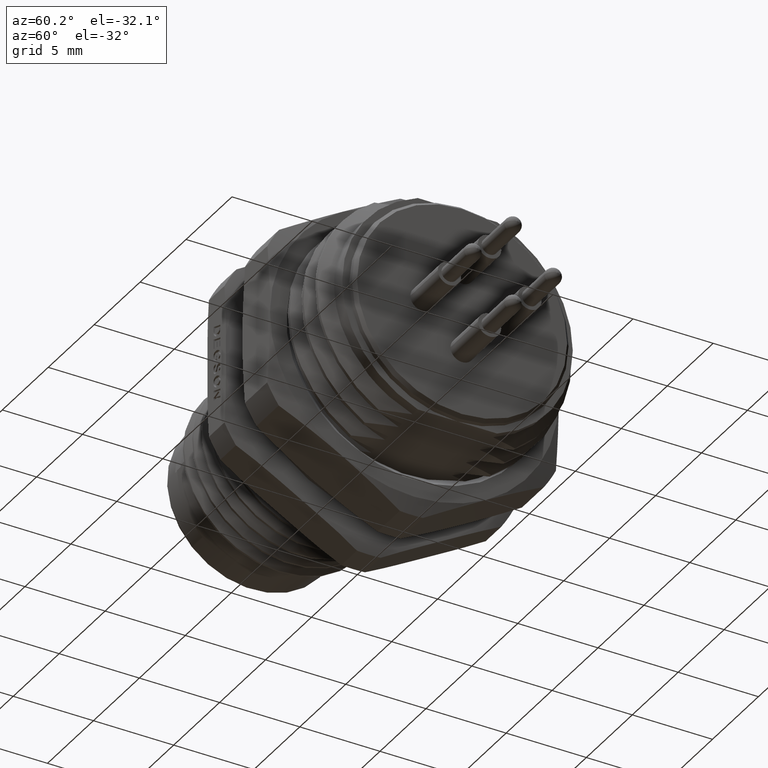
[diagram: clean part render]
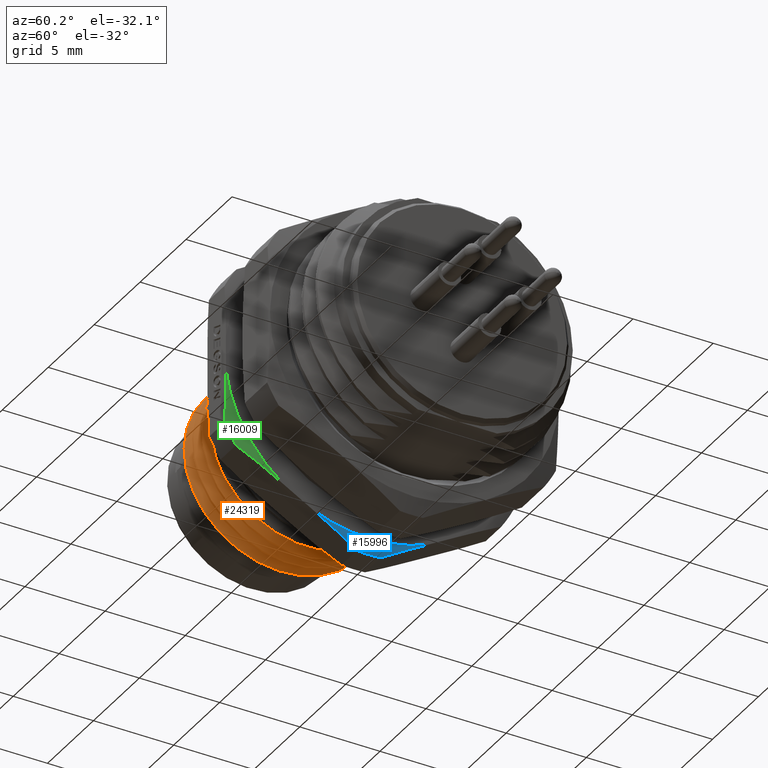
[diagram: same view with three faces highlighted in distinct colors, each labeled with its STEP entity id]
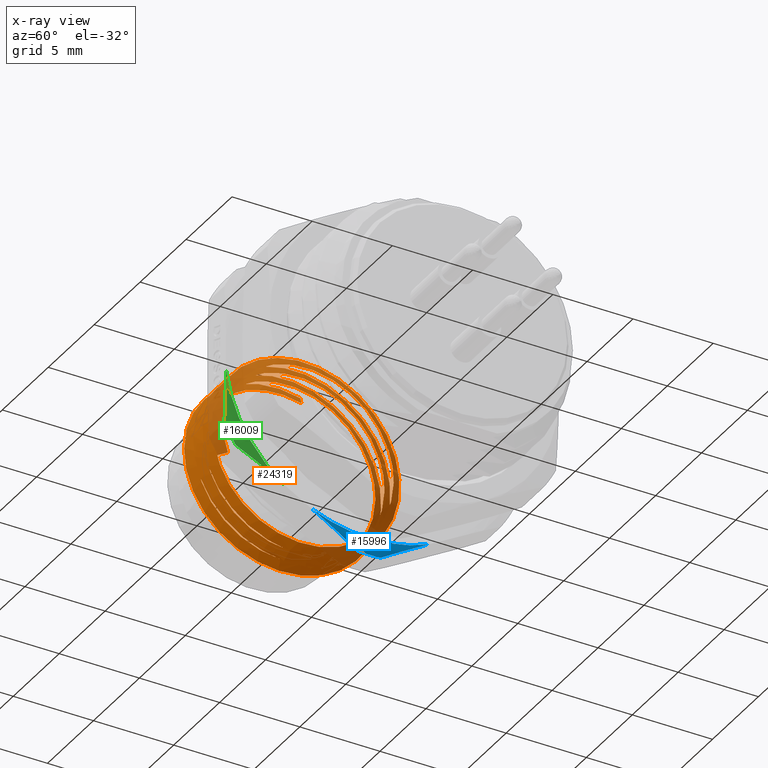
[diagram: x-ray of the same camera — body ghosted, the three highlighted faces saturated]
A machine part, auxiliary view with three faces highlighted in distinct colors.
The next image is the same camera in x-ray (body ghosted, the three faces saturated) — at least one of them is partly hidden behind the body in this view.
Their STEP definitions:

[orange] entity #24319 — the highlighted face is a freeform B-spline surface patch.
#7145=CARTESIAN_POINT('',(3.925110893916E0,-5.458462954374E0,
-1.034022237555E-6));
#7146=CARTESIAN_POINT('',(3.915874759839E0,-5.458462954374E0,
3.176939099980E-1));
#7147=CARTESIAN_POINT('',(3.897338902145E0,-5.402961951286E0,
9.532645131979E-1));
#7148=CARTESIAN_POINT('',(3.869466339573E0,-5.154311855541E0,1.880224829294E0));
#7149=CARTESIAN_POINT('',(3.841696081570E0,-4.748889004004E0,2.745933586248E0));
#7150=CARTESIAN_POINT('',(3.814310058758E0,-4.209028152453E0,3.518989806271E0));
#7151=CARTESIAN_POINT('',(3.786162154714E0,-3.524721522144E0,4.204990101632E0));
#7152=CARTESIAN_POINT('',(3.758393365425E0,-2.740784624661E0,4.752488109097E0));
#7153=CARTESIAN_POINT('',(3.730564741960E0,-1.872431004776E0,5.157030931566E0));
#7154=CARTESIAN_POINT('',(3.702726098155E0,-9.463507257367E-1,
5.404219098629E0));
#7155=CARTESIAN_POINT('',(3.674845465005E0,9.983369484973E-3,5.486436523570E0));
#7156=CARTESIAN_POINT('',(3.647041288167E0,9.633945668887E-1,5.400985244982E0));
#7157=CARTESIAN_POINT('',(3.619297285297E0,1.885592777829E0,5.152066952745E0));
#7158=CARTESIAN_POINT('',(3.591536868240E0,2.750862741965E0,4.746499537824E0));
#7159=CARTESIAN_POINT('',(3.563855074803E0,3.531272674900E0,4.199210870332E0));
#7160=CARTESIAN_POINT('',(3.535801374739E0,4.212429107817E0,3.514751929405E0));
#7161=CARTESIAN_POINT('',(3.508438830380E0,4.751245727893E0,2.741752203590E0));
#7162=CARTESIAN_POINT('',(3.480716342020E0,5.155028668606E0,1.877720006130E0));
#7163=CARTESIAN_POINT('',(3.452983722308E0,5.402777274677E0,9.536361622753E-1));
#7164=CARTESIAN_POINT('',(3.434324337725E0,5.458499072433E0,3.180259185384E-1));
#7165=CARTESIAN_POINT('',(3.425111092593E0,5.458499091056E0,5.327545045412E-7));
#7193=CARTESIAN_POINT('',(4.925119387754E0,-5.458507516866E0,
-3.812726092042E-7));
#7194=CARTESIAN_POINT('',(4.915805579912E0,-5.458507516866E0,
3.175229966495E-1));
#7195=CARTESIAN_POINT('',(4.897391258896E0,-5.402888141827E0,
9.527446022828E-1));
#7196=CARTESIAN_POINT('',(4.869547240258E0,-5.155398178568E0,1.877229255888E0));
#7197=CARTESIAN_POINT('',(4.841737852401E0,-4.749583759298E0,2.744807400910E0));
#7198=CARTESIAN_POINT('',(4.814400921393E0,-4.210946616095E0,3.516474263050E0));
#7199=CARTESIAN_POINT('',(4.786288531264E0,-3.528056709150E0,4.202194201256E0));
#7200=CARTESIAN_POINT('',(4.758500403948E0,-2.744003263366E0,4.750674960975E0));
#7201=CARTESIAN_POINT('',(4.730658026739E0,-1.875464649490E0,5.155974302667E0));
#7202=CARTESIAN_POINT('',(4.702791646844E0,-9.485878346869E-1,
5.403866661463E0));
#7203=CARTESIAN_POINT('',(4.674901398374E0,8.061424321172E-3,5.486465621155E0));
#7204=CARTESIAN_POINT('',(4.647081914870E0,9.620111594402E-1,5.401239012741E0));
#7205=CARTESIAN_POINT('',(4.619337933902E0,1.884294607204E0,5.152582439592E0));
#7206=CARTESIAN_POINT('',(4.591547135281E0,2.750565883193E0,4.746698456299E0));
#7207=CARTESIAN_POINT('',(4.563868712414E0,3.530927062826E0,4.199540097978E0));
#7208=CARTESIAN_POINT('',(4.535796086911E0,4.212542580115E0,3.514553791442E0));
#7209=CARTESIAN_POINT('',(4.508468030227E0,4.750677146523E0,2.742766396033E0));
#7210=CARTESIAN_POINT('',(4.480714170420E0,5.155273770425E0,1.877183435064E0));
#7211=CARTESIAN_POINT('',(4.452939983820E0,5.402713723528E0,9.538117917864E-1));
#7212=CARTESIAN_POINT('',(4.434422015615E0,5.458467445609E0,3.180673808069E-1));
#7213=CARTESIAN_POINT('',(4.425110471044E0,5.458467488005E0,9.540060937383E-7));
#7241=CARTESIAN_POINT('',(2.925110686138E0,-5.458524390436E0,
-7.146764465563E-9));
#7242=CARTESIAN_POINT('',(2.915846653585E0,-5.458524390436E0,
3.172595248717E-1));
#7243=CARTESIAN_POINT('',(2.897389621659E0,-5.403076260597E0,
9.522509598983E-1));
#7244=CARTESIAN_POINT('',(2.869494281783E0,-5.154755604234E0,1.879118864957E0));
#7245=CARTESIAN_POINT('',(2.841703251646E0,-4.749026005614E0,2.745812658372E0));
#7246=CARTESIAN_POINT('',(2.814315233722E0,-4.209084299481E0,3.518765428791E0));
#7247=CARTESIAN_POINT('',(2.786214464833E0,-3.526130835307E0,4.203893595146E0));
#7248=CARTESIAN_POINT('',(2.758346266712E0,-2.739470924363E0,4.753423820190E0));
#7249=CARTESIAN_POINT('',(2.730500734588E0,-1.870349792208E0,5.157801315707E0));
#7250=CARTESIAN_POINT('',(2.702639857336E0,-9.434307582586E-1,
5.404758496119E0));
#7251=CARTESIAN_POINT('',(2.674769234632E0,1.261223468489E-2,5.486373663233E0));
#7252=CARTESIAN_POINT('',(2.646995748819E0,9.649353404795E-1,5.400667810380E0));
#7253=CARTESIAN_POINT('',(2.619268506010E0,1.886498579717E0,5.151668837520E0));
#7254=CARTESIAN_POINT('',(2.591547687967E0,2.750524756814E0,4.746642685812E0));
#7255=CARTESIAN_POINT('',(2.563867386128E0,3.530926619979E0,4.199495423297E0));
#7256=CARTESIAN_POINT('',(2.535828162712E0,4.211863944291E0,3.515395393877E0));
#7257=CARTESIAN_POINT('',(2.508463486476E0,4.750706316845E0,2.742658416701E0));
#7258=CARTESIAN_POINT('',(2.480766919226E0,5.154683952450E0,1.878770579858E0));
#7259=CARTESIAN_POINT('',(2.452924030660E0,5.402823557965E0,9.536670985618E-1));
#7260=CARTESIAN_POINT('',(2.434441446934E0,5.458489733281E0,3.179963780008E-1));
#7261=CARTESIAN_POINT('',(2.425110358849E0,5.458489759418E0,7.477623304995E-7));
#7363=CARTESIAN_POINT('',(1.925110135E0,-5.458460352575E0,-1.094261576913E-6));
#7364=CARTESIAN_POINT('',(1.916355990757E0,-5.458460352575E0,
2.998281776131E-1));
#7365=CARTESIAN_POINT('',(1.898936699739E0,-5.408969111105E0,
8.990763573244E-1));
#7366=CARTESIAN_POINT('',(1.872762104307E0,-5.188953508355E0,1.771806382623E0));
#7367=CARTESIAN_POINT('',(1.846606933989E0,-4.829114643807E0,2.597001041154E0));
#7368=CARTESIAN_POINT('',(1.820439504606E0,-4.338992621246E0,3.352388465929E0));
#7369=CARTESIAN_POINT('',(1.794230030249E0,-3.730736695987E0,4.018384050003E0));
#7370=CARTESIAN_POINT('',(1.768033895795E0,-3.021863588996E0,4.575327907958E0));
#7371=CARTESIAN_POINT('',(1.741838320293E0,-2.231400202431E0,5.008682545730E0));
#7372=CARTESIAN_POINT('',(1.715607936299E0,-1.379330918701E0,5.306902442697E0));
#7373=CARTESIAN_POINT('',(1.689409833807E0,-4.914268204067E-1,
5.461151073764E0));
#7374=CARTESIAN_POINT('',(1.663227755814E0,4.110625478244E-1,5.467809439482E0));
#7375=CARTESIAN_POINT('',(1.645660035872E0,1.004260952015E0,5.373648243291E0));
#7376=CARTESIAN_POINT('',(1.636992851998E0,1.294918229946E0,5.302669388188E0));
#7477=DIRECTION('',(5.000193582571E-1,-2.054454894910E-1,-8.412923345758E-1));
#7478=VECTOR('',#7477,6.252288394915E-1);
#7479=CARTESIAN_POINT('',(1.324366328911E0,1.423368674919E0,5.828669618208E0));
#7480=LINE('',#7479,#7478);
#7515=CARTESIAN_POINT('',(1.324366328911E0,1.423368674919E0,5.828669618208E0));
#7541=CARTESIAN_POINT('',(1.324366328911E0,1.423368674919E0,5.828669618208E0));
#7542=CARTESIAN_POINT('',(1.333367867425E0,1.093684243670E0,5.909064263575E0));
#7543=CARTESIAN_POINT('',(1.351358928719E0,4.191392399015E-1,6.014411866754E0));
#7544=CARTESIAN_POINT('',(1.378600798395E0,-6.106106330622E-1,
5.998443911147E0));
#7545=CARTESIAN_POINT('',(1.405858227662E0,-1.624078418556E0,5.805913137878E0));
#7546=CARTESIAN_POINT('',(1.432811620595E0,-2.579420689694E0,5.449472336250E0));
#7547=CARTESIAN_POINT('',(1.460198831955E0,-3.474670012021E0,4.927505466592E0));
#7548=CARTESIAN_POINT('',(1.487379511591E0,-4.261432187322E0,4.265237613191E0));
#7549=CARTESIAN_POINT('',(1.514674020700E0,-4.926652828682E0,3.475218387258E0));
#7550=CARTESIAN_POINT('',(1.541633469368E0,-5.441590922875E0,2.594854087064E0));
#7551=CARTESIAN_POINT('',(1.568702063689E0,-5.802803005559E0,1.636419016334E0));
#7552=CARTESIAN_POINT('',(1.595967623352E0,-5.997019230619E0,
6.233527453033E-1));
#7553=CARTESIAN_POINT('',(1.623174464229E0,-6.015321490370E0,
-4.060328927039E-1));
#7554=CARTESIAN_POINT('',(1.650253357082E0,-5.859538948293E0,
-1.418509028484E0));
#7555=CARTESIAN_POINT('',(1.677241872116E0,-5.535915409534E0,
-2.387098804854E0));
#7556=CARTESIAN_POINT('',(1.704217713130E0,-5.054037460882E0,
-3.286610665132E0));
#7557=CARTESIAN_POINT('',(1.731208555269E0,-4.426807866350E0,
-4.092653593113E0));
#7558=CARTESIAN_POINT('',(1.758264980590E0,-3.670645595385E0,
-4.782419583009E0));
#7559=CARTESIAN_POINT('',(1.785177296503E0,-2.813307597917E0,
-5.331974520832E0));
#7560=CARTESIAN_POINT('',(1.812302158446E0,-1.868523837541E0,
-5.732364099129E0));
#7561=CARTESIAN_POINT('',(1.839519488507E0,-8.655919878167E-1,
-5.966696266459E0));
#7562=CARTESIAN_POINT('',(1.866742780944E0,1.625656272729E-1,
-6.027102324048E0));
#7563=CARTESIAN_POINT('',(1.893919714333E0,1.184350092248E0,-5.911198345740E0));
#7564=CARTESIAN_POINT('',(1.920858235801E0,2.163217908239E0,-5.627585887385E0));
#7565=CARTESIAN_POINT('',(1.948203218578E0,3.093814796304E0,-5.175208658133E0));
#7566=CARTESIAN_POINT('',(1.975451591856E0,3.930064992058E0,-4.572311453440E0));
#7567=CARTESIAN_POINT('',(2.002649690279E0,4.650262778026E0,-3.837134763648E0));
#7568=CARTESIAN_POINT('',(2.029736316256E0,5.232957008167E0,-2.994199928681E0));
#7569=CARTESIAN_POINT('',(2.056887326826E0,5.665239419698E0,-2.062193494103E0));
#7570=CARTESIAN_POINT('',(2.083910830004E0,5.932142187838E0,-1.075350676657E0));
#7571=CARTESIAN_POINT('',(2.111051857395E0,6.029073953921E0,
-5.289364713209E-2));
#7572=CARTESIAN_POINT('',(2.138402051767E0,5.949452838880E0,9.787395951627E-1));
#7573=CARTESIAN_POINT('',(2.165645238127E0,5.695568061060E0,1.977980077453E0));
#7574=CARTESIAN_POINT('',(2.192833210307E0,5.275984719522E0,2.916979584741E0));
#7575=CARTESIAN_POINT('',(2.219625988217E0,4.712332062136E0,3.759678015084E0));
#7576=CARTESIAN_POINT('',(2.246643739022E0,4.009937929678E0,4.502073747733E0));
#7577=CARTESIAN_POINT('',(2.273724715802E0,3.189488627028E0,5.116094407257E0));
#7578=CARTESIAN_POINT('',(2.300807813621E0,2.277173653200E0,5.582330930419E0));
#7579=CARTESIAN_POINT('',(2.327879742596E0,1.299192418370E0,5.887206058648E0));
#7580=CARTESIAN_POINT('',(2.354974536816E0,2.831393497700E-1,6.022363543713E0));
#7581=CARTESIAN_POINT('',(2.382119305621E0,-7.432730110294E-1,
5.983065337552E0));
#7582=CARTESIAN_POINT('',(2.409323189187E0,-1.750104172162E0,5.769710090915E0));
#7583=CARTESIAN_POINT('',(2.436536521055E0,-2.706218248724E0,5.387357365011E0));
#7584=CARTESIAN_POINT('',(2.463579397235E0,-3.578363346172E0,4.852470362589E0));
#7585=CARTESIAN_POINT('',(2.490923898869E0,-4.355410374763E0,4.169256516758E0));
#7586=CARTESIAN_POINT('',(2.518087571754E0,-5.000198152818E0,3.368958431556E0));
#7587=CARTESIAN_POINT('',(2.545366791677E0,-5.501329394913E0,2.466561020667E0));
#7588=CARTESIAN_POINT('',(2.572322831943E0,-5.838066035998E0,1.503984636137E0));
#7589=CARTESIAN_POINT('',(2.599448673150E0,-6.009144331892E0,
4.919232763638E-1));
#7590=CARTESIAN_POINT('',(2.626742083621E0,-6.005060448891E0,
-5.406466722383E-1));
#7591=CARTESIAN_POINT('',(2.653961974952E0,-5.825125890980E0,
-1.554862869079E0));
#7592=CARTESIAN_POINT('',(2.681069769303E0,-5.477115758254E0,
-2.519471559996E0));
#7593=CARTESIAN_POINT('',(2.708095425084E0,-4.972587776267E0,
-3.409046947106E0));
#7594=CARTESIAN_POINT('',(2.735217250671E0,-4.322350654891E0,
-4.202620798900E0));
#7595=CARTESIAN_POINT('',(2.762099939181E0,-3.554310815838E0,
-4.869687871693E0));
#7596=CARTESIAN_POINT('',(2.789400038023E0,-2.671373568442E0,
-5.405372822940E0));
#7597=CARTESIAN_POINT('',(2.816657180851E0,-1.710861208675E0,
-5.781513094798E0));
#7598=CARTESIAN_POINT('',(2.843976766265E0,-6.983090946150E-1,
-5.988673382942E0));
#7599=CARTESIAN_POINT('',(2.871064117688E0,3.262124257244E-1,
-6.019829519281E0));
#7600=CARTESIAN_POINT('',(2.898061130916E0,1.337706039E0,-5.878716167544E0));
#7601=CARTESIAN_POINT('',(2.925300577482E0,2.319623229099E0,-5.565201828754E0));
#7602=CARTESIAN_POINT('',(2.952516320648E0,3.232678361842E0,-5.089296800652E0));
#7603=CARTESIAN_POINT('',(2.979745146245E0,4.052038509017E0,-4.464560136202E0));
#7604=CARTESIAN_POINT('',(3.006951648463E0,4.752334813965E0,-3.710249430264E0));
#7605=CARTESIAN_POINT('',(3.034126788999E0,5.313608101943E0,-2.848619852006E0));
#7606=CARTESIAN_POINT('',(3.061255038689E0,5.719843957881E0,-1.906143249420E0));
#7607=CARTESIAN_POINT('',(3.088450150238E0,5.960627724924E0,
-9.056398208863E-1));
#7608=CARTESIAN_POINT('',(3.115529334879E0,6.027767823005E0,1.165731648748E-1));
#7609=CARTESIAN_POINT('',(3.142700106701E0,5.920759847321E0,1.139169418999E0));
#7610=CARTESIAN_POINT('',(3.170034166848E0,5.638987560279E0,2.134117028533E0));
#7611=CARTESIAN_POINT('',(3.197259533162E0,5.193321048386E0,3.063070314084E0));
#7612=CARTESIAN_POINT('',(3.224491779857E0,4.595529420079E0,3.902014009669E0));
#7613=CARTESIAN_POINT('',(3.251296961574E0,3.876274872272E0,4.617245694420E0));
#7614=CARTESIAN_POINT('',(3.278502154669E0,3.034850569142E0,5.209768366944E0));
#7615=CARTESIAN_POINT('',(3.305674561991E0,2.105341019466E0,5.649539086693E0));
#7616=CARTESIAN_POINT('',(3.332839106100E0,1.115307131872E0,5.924940540709E0));
#7617=CARTESIAN_POINT('',(3.359945289460E0,9.480346538817E-2,6.028253396721E0));
#7618=CARTESIAN_POINT('',(3.387097960354E0,-9.299279117774E-1,
5.956917421053E0));
#7619=CARTESIAN_POINT('',(3.414216374440E0,-1.926576750474E0,5.712689256592E0));
#7620=CARTESIAN_POINT('',(3.441262597535E0,-2.865034107223E0,5.304938908752E0));
#7621=CARTESIAN_POINT('',(3.468594662073E0,-3.729607445692E0,4.737365222773E0));
#7622=CARTESIAN_POINT('',(3.495771410501E0,-4.480308615031E0,4.034726064956E0));
#7623=CARTESIAN_POINT('',(3.523076295824E0,-5.103155242897E0,3.210401570990E0));
#7624=CARTESIAN_POINT('',(3.550012170919E0,-5.570656996700E0,2.304938749563E0));
#7625=CARTESIAN_POINT('',(3.577191358E0,-5.882007793592E0,1.324772991972E0));
#7626=CARTESIAN_POINT('',(3.604466987019E0,-6.021679307267E0,
3.023454337665E-1));
#7627=CARTESIAN_POINT('',(3.631693071393E0,-5.985111451234E0,
-7.272711474024E-1));
#7628=CARTESIAN_POINT('',(3.658816586211E0,-5.774844880389E0,
-1.731596122569E0));
#7629=CARTESIAN_POINT('',(3.685868613548E0,-5.398608074574E0,
-2.683585378316E0));
#7630=CARTESIAN_POINT('',(3.712876557985E0,-4.867828898813E0,
-3.556573300442E0));
#7631=CARTESIAN_POINT('',(3.739878389080E0,-4.197433025881E0,
-4.327643076422E0));
#7632=CARTESIAN_POINT('',(3.766905331367E0,-3.405649229508E0,
-4.974413602867E0));
#7633=CARTESIAN_POINT('',(3.793803524103E0,-2.520404596094E0,
-5.476747536752E0));
#7634=CARTESIAN_POINT('',(3.821045922002E0,-1.550974502112E0,
-5.826402159215E0));
#7635=CARTESIAN_POINT('',(3.848286209763E0,-5.357764565866E-1,
-6.005516942062E0));
#7636=CARTESIAN_POINT('',(3.875593082563E0,4.972670131696E-1,
-6.008617020244E0));
#7637=CARTESIAN_POINT('',(3.902649427029E0,1.506649190918E0,-5.837342005241E0));
#7638=CARTESIAN_POINT('',(3.929647360229E0,2.470521320295E0,-5.499608841125E0));
#7639=CARTESIAN_POINT('',(3.956930336478E0,3.372758169621E0,-4.997783109951E0));
#7640=CARTESIAN_POINT('',(3.984147356731E0,4.173821758587E0,-4.350800953150E0));
#7641=CARTESIAN_POINT('',(4.011324473849E0,4.852416414231E0,-3.578118644501E0));
#7642=CARTESIAN_POINT('',(4.038432086074E0,5.388762431310E0,-2.704001420572E0));
#7643=CARTESIAN_POINT('',(4.065665234607E0,5.770377738342E0,-1.746797354047E0));
#7644=CARTESIAN_POINT('',(4.092663710139E0,5.982347572495E0,
-7.476337026938E-1));
#7645=CARTESIAN_POINT('',(4.119916252559E0,6.022775375099E0,2.828020450860E-1));
#7646=CARTESIAN_POINT('',(4.147175163851E0,5.886265412675E0,1.305013580343E0));
#7647=CARTESIAN_POINT('',(4.174384685965E0,5.578311221093E0,2.287529869610E0));
#7648=CARTESIAN_POINT('',(4.201437646932E0,5.110452274014E0,3.197699260201E0));
#7649=CARTESIAN_POINT('',(4.228251149106E0,4.501923962176E0,4.009541903877E0));
#7650=CARTESIAN_POINT('',(4.255324178512E0,3.758546208448E0,4.713978781726E0));
#7651=CARTESIAN_POINT('',(4.282399167445E0,2.906042804905E0,5.282249093538E0));
#7652=CARTESIAN_POINT('',(4.309439956794E0,1.971140525369E0,5.697390301848E0));
#7653=CARTESIAN_POINT('',(4.336438166958E0,9.808695851236E-1,5.948427934754E0));
#7654=CARTESIAN_POINT('',(4.363475991350E0,-3.879655424918E-2,
6.028742670046E0));
#7655=CARTESIAN_POINT('',(4.390596865643E0,-1.060780682188E0,5.935072353216E0));
#7656=CARTESIAN_POINT('',(4.417804011252E0,-2.054863779445E0,5.668163046601E0));
#7657=CARTESIAN_POINT('',(4.444938137231E0,-2.986697030542E0,5.237027451781E0));
#7658=CARTESIAN_POINT('',(4.471994876220E0,-3.829800525051E0,4.656547140276E0));
#7659=CARTESIAN_POINT('',(4.499311028312E0,-4.568937462997E0,3.934027695736E0));
#7660=CARTESIAN_POINT('',(4.526465406024E0,-5.170591139165E0,3.101229277948E0));
#7661=CARTESIAN_POINT('',(4.553802105572E0,-5.624262737022E0,2.171678584441E0));
#7662=CARTESIAN_POINT('',(4.580693752336E0,-5.909075473452E0,1.194948841484E0));
#7663=CARTESIAN_POINT('',(4.607934103320E0,-6.027008329475E0,
1.711146818126E-1));
#7664=CARTESIAN_POINT('',(4.635194468921E0,-5.967759324039E0,
-8.590110915925E-1));
#7665=CARTESIAN_POINT('',(4.653387957197E0,-5.811935390673E0,
-1.528452889199E0));
#7666=CARTESIAN_POINT('',(4.662469055234E0,-5.706252821370E0,
-1.854074129763E0));
#8057=DIRECTION('',(5.000411336702E-1,8.236164563603E-1,2.676094121109E-1));
#8058=VECTOR('',#8057,6.252012864018E-1);
#8059=CARTESIAN_POINT('',(4.662469055234E0,-5.706252821370E0,
-1.854074129763E0));
#8060=LINE('',#8059,#8058);
#8153=CARTESIAN_POINT('',(4.975095415259E0,-5.191326753352E0,
-1.686764381058E0));
#8154=CARTESIAN_POINT('',(4.969503735029E0,-5.250205374399E0,
-1.505554589881E0));
#8155=CARTESIAN_POINT('',(4.958595363892E0,-5.348994569756E0,
-1.136962790571E0));
#8156=CARTESIAN_POINT('',(4.941747891570E0,-5.438522682733E0,
-5.716157015273E-1));
#8157=CARTESIAN_POINT('',(4.930708368281E0,-5.458507510130E0,
-1.905379971867E-1));
#8158=CARTESIAN_POINT('',(4.925119387754E0,-5.458507516866E0,
-3.812726092042E-7));
#8207=CARTESIAN_POINT('',(2.425110358849E0,5.458489759418E0,7.477623304995E-7));
#8208=CARTESIAN_POINT('',(2.415801805489E0,5.458489785493E0,
-3.172269179894E-1));
#8209=CARTESIAN_POINT('',(2.397418894977E0,5.403086351318E0,
-9.520487136942E-1));
#8210=CARTESIAN_POINT('',(2.369522164440E0,5.155109897920E0,-1.877960346309E0));
#8211=CARTESIAN_POINT('',(2.341753956182E0,4.749883048923E0,-2.744379170493E0));
#8212=CARTESIAN_POINT('',(2.314334615984E0,4.209570672577E0,-3.518265218205E0));
#8213=CARTESIAN_POINT('',(2.286220251208E0,3.526289833449E0,-4.203790232005E0));
#8214=CARTESIAN_POINT('',(2.258342701515E0,2.739367168448E0,-4.753482654046E0));
#8215=CARTESIAN_POINT('',(2.230505262942E0,1.870490681814E0,-5.157735702538E0));
#8216=CARTESIAN_POINT('',(2.202644572505E0,9.435920598306E-1,
-5.404736894118E0));
#8217=CARTESIAN_POINT('',(2.174772479509E0,-1.249981354460E-2,
-5.486368837662E0));
#8218=CARTESIAN_POINT('',(2.147003313321E0,-9.646787029804E-1,
-5.400710609332E0));
#8219=CARTESIAN_POINT('',(2.119276366287E0,-1.886241213433E0,
-5.151751850560E0));
#8220=CARTESIAN_POINT('',(2.091565145441E0,-2.749993997027E0,
-4.746933070150E0));
#8221=CARTESIAN_POINT('',(2.063886758111E0,-3.530423860152E0,
-4.199921248128E0));
#8222=CARTESIAN_POINT('',(2.035846577457E0,-4.211436272209E0,
-3.515899993250E0));
#8223=CARTESIAN_POINT('',(2.008488364278E0,-4.750315504302E0,
-2.743329566615E0));
#8224=CARTESIAN_POINT('',(1.980777813804E0,-5.154488782996E0,
-1.879370518758E0));
#8225=CARTESIAN_POINT('',(1.952950211956E0,-5.402846803083E0,
-9.537473123403E-1));
#8226=CARTESIAN_POINT('',(1.934394974114E0,-5.458460304762E0,
-3.180057098011E-1));
#8227=CARTESIAN_POINT('',(1.925110135E0,-5.458460352575E0,-1.094261576913E-6));
#8255=CARTESIAN_POINT('',(4.425110471044E0,5.458467488005E0,9.540060937383E-7));
#8256=CARTESIAN_POINT('',(4.415810418561E0,5.458467485193E0,
-3.176738133325E-1));
#8257=CARTESIAN_POINT('',(4.397373925173E0,5.402963884436E0,
-9.532176430129E-1));
#8258=CARTESIAN_POINT('',(4.369459376296E0,5.154352647127E0,-1.880111092619E0));
#8259=CARTESIAN_POINT('',(4.341701422876E0,4.748927546850E0,-2.745876934912E0));
#8260=CARTESIAN_POINT('',(4.314310560173E0,4.209057367995E0,-3.518942088996E0));
#8261=CARTESIAN_POINT('',(4.286169215887E0,3.524897444194E0,-4.204841954097E0));
#8262=CARTESIAN_POINT('',(4.258395205764E0,2.740848455779E0,-4.752460030240E0));
#8263=CARTESIAN_POINT('',(4.230565098114E0,1.872442379472E0,-5.157036158758E0));
#8264=CARTESIAN_POINT('',(4.202719689014E0,9.461372476583E-1,
-5.404264080958E0));
#8265=CARTESIAN_POINT('',(4.174837511490E0,-1.026050047384E-2,
-5.486447368534E0));
#8266=CARTESIAN_POINT('',(4.147025359782E0,-9.639331828280E-1,-5.400893593E0));
#8267=CARTESIAN_POINT('',(4.119282178493E0,-1.886088446525E0,
-5.151900617882E0));
#8268=CARTESIAN_POINT('',(4.091509079156E0,-2.751696449124E0,
-4.746028390019E0));
#8269=CARTESIAN_POINT('',(4.063830398352E0,-3.531921134128E0,
-4.198665947619E0));
#8270=CARTESIAN_POINT('',(4.035771845009E0,-4.213092762621E0,
-3.513959127777E0));
#8271=CARTESIAN_POINT('',(4.008411980561E0,-4.751679793345E0,
-2.740995004381E0));
#8272=CARTESIAN_POINT('',(3.980697626180E0,-5.155280212363E0,
-1.876942284167E0));
#8273=CARTESIAN_POINT('',(3.952965031068E0,-5.402774691149E0,
-9.535554341330E-1));
#8274=CARTESIAN_POINT('',(3.934356521075E0,-5.458462909191E0,
-3.180216138669E-1));
#8275=CARTESIAN_POINT('',(3.925110893916E0,-5.458462954374E0,
-1.034022237555E-6));
#8309=CARTESIAN_POINT('',(3.425111092593E0,5.458499091056E0,5.327545045412E-7));
#8310=CARTESIAN_POINT('',(3.415907032677E0,5.458499109662E0,
-3.177077952072E-1));
#8311=CARTESIAN_POINT('',(3.397321188949E0,5.402940824644E0,
-9.532907365379E-1));
#8312=CARTESIAN_POINT('',(3.369471009046E0,5.154308352777E0,-1.880243722144E0));
#8313=CARTESIAN_POINT('',(3.341694820731E0,4.748892357995E0,-2.745918952229E0));
#8314=CARTESIAN_POINT('',(3.314311430956E0,4.209051154146E0,-3.518972473661E0));
#8315=CARTESIAN_POINT('',(3.286158460368E0,3.524630674353E0,-4.205068676825E0));
#8316=CARTESIAN_POINT('',(3.258393173546E0,2.740772119734E0,-4.752487172661E0));
#8317=CARTESIAN_POINT('',(3.230566927860E0,1.872501504237E0,-5.156996678719E0));
#8318=CARTESIAN_POINT('',(3.202732964148E0,9.465808048431E-1,
-5.404175665321E0));
#8319=CARTESIAN_POINT('',(3.174852777028E0,-9.728491987565E-3,
-5.486426400080E0));
#8320=CARTESIAN_POINT('',(3.147056512707E0,-9.628801457117E-1,
-5.401072193618E0));
#8321=CARTESIAN_POINT('',(3.119311848110E0,-1.885113115770E0,
-5.152227038813E0));
#8322=CARTESIAN_POINT('',(3.091564825814E0,-2.750027410420E0,
-4.746968285188E0));
#8323=CARTESIAN_POINT('',(3.063880236523E0,-3.530598662848E0,
-4.199779991264E0));
#8324=CARTESIAN_POINT('',(3.035831810177E0,-4.211781207554E0,
-3.515523300015E0));
#8325=CARTESIAN_POINT('',(3.008462331585E0,-4.750778457020E0,
-2.742564214726E0));
#8326=CARTESIAN_POINT('',(2.980751715398E0,-5.154775004743E0,
-1.878504817828E0));
#8327=CARTESIAN_POINT('',(2.952949759204E0,-5.402777738919E0,
-9.537523911320E-1));
#8328=CARTESIAN_POINT('',(2.934397507598E0,-5.458524390436E0,
-3.180399766407E-1));
#8329=CARTESIAN_POINT('',(2.925110686138E0,-5.458524390436E0,
-7.146764465563E-9));
#13570=VERTEX_POINT('',#7363);
#13571=VERTEX_POINT('',#7376);
#13573=VERTEX_POINT('',#7515);
#13574=VERTEX_POINT('',#7666);
#13575=VERTEX_POINT('',#8207);
#13577=VERTEX_POINT('',#7241);
#13579=VERTEX_POINT('',#8309);
#13581=VERTEX_POINT('',#7145);
#13583=VERTEX_POINT('',#8255);
#13585=VERTEX_POINT('',#7193);
#13587=VERTEX_POINT('',#8153);
#24030=CARTESIAN_POINT('',(1.642775549621E0,1.975474396615E0,5.037958113635E0));
#24031=CARTESIAN_POINT('',(1.520455504688E0,2.052815314917E0,5.235196968031E0));
#24032=CARTESIAN_POINT('',(1.398135459756E0,2.130156233219E0,5.432435822426E0));
#24033=CARTESIAN_POINT('',(1.275815414823E0,2.207497151521E0,5.629674676821E0));
#24034=CARTESIAN_POINT('',(1.649894480341E0,1.750207967640E0,5.126504418101E0));
#24035=CARTESIAN_POINT('',(1.527574435409E0,1.818729580307E0,5.327209909428E0));
#24036=CARTESIAN_POINT('',(1.405254390476E0,1.887251192973E0,5.527915400754E0));
#24037=CARTESIAN_POINT('',(1.282934345544E0,1.955772805639E0,5.728620892081E0));
#24038=CARTESIAN_POINT('',(1.670921982476E0,1.067019258376E0,5.342443371659E0));
#24039=CARTESIAN_POINT('',(1.548601937544E0,1.108793654152E0,5.551602992786E0));
#24040=CARTESIAN_POINT('',(1.426281892611E0,1.150568049928E0,5.760762613912E0));
#24041=CARTESIAN_POINT('',(1.303961847679E0,1.192342445704E0,5.969922235039E0));
#24042=CARTESIAN_POINT('',(1.710030966779E0,-2.663105617490E-1,
5.488285717932E0));
#24043=CARTESIAN_POINT('',(1.587710921846E0,-2.767367679476E-1,
5.703155147805E0));
#24044=CARTESIAN_POINT('',(1.465390876913E0,-2.871629741462E-1,
5.918024577677E0));
#24045=CARTESIAN_POINT('',(1.343070831981E0,-2.975891803449E-1,
6.132894007550E0));
#24046=CARTESIAN_POINT('',(1.760102501302E0,-1.961616102942E0,
5.156829466277E0));
#24047=CARTESIAN_POINT('',(1.637782456369E0,-2.038414461360E0,
5.358722200059E0));
#24048=CARTESIAN_POINT('',(1.515462411437E0,-2.115212819779E0,
5.560614933841E0));
#24049=CARTESIAN_POINT('',(1.393142366505E0,-2.192011178198E0,
5.762507667623E0));
#24050=CARTESIAN_POINT('',(1.814346947803E0,-3.572542769587E0,
4.204495832779E0));
#24051=CARTESIAN_POINT('',(1.692026902870E0,-3.712409800487E0,
4.369104176608E0));
#24052=CARTESIAN_POINT('',(1.569706857938E0,-3.852276831387E0,
4.533712520437E0));
#24053=CARTESIAN_POINT('',(1.447386813006E0,-3.992143862287E0,
4.698320864266E0));
#24054=CARTESIAN_POINT('',(1.868591394303E0,-4.772469638099E0,
2.768460740891E0));
#24055=CARTESIAN_POINT('',(1.746271349370E0,-4.959314471428E0,
2.876847514392E0));
#24056=CARTESIAN_POINT('',(1.623951304438E0,-5.146159304756E0,
2.985234287893E0));
#24057=CARTESIAN_POINT('',(1.501631259506E0,-5.333004138084E0,
3.093621061394E0));
#24058=CARTESIAN_POINT('',(1.922835840804E0,-5.423355372189E0,
1.013932613227E0));
#24059=CARTESIAN_POINT('',(1.800515795871E0,-5.635682743012E0,
1.053628637400E0));
#24060=CARTESIAN_POINT('',(1.678195750939E0,-5.848010113836E0,
1.093324661573E0));
#24061=CARTESIAN_POINT('',(1.555875706007E0,-6.060337484660E0,
1.133020685747E0));
#24062=CARTESIAN_POINT('',(1.977080287304E0,-5.450319133401E0,
-8.572419882731E-1));
#24063=CARTESIAN_POINT('',(1.854760242371E0,-5.663702150432E0,
-8.908034875741E-1));
#24064=CARTESIAN_POINT('',(1.732440197439E0,-5.877085167462E0,
-9.243649868751E-1));
#24065=CARTESIAN_POINT('',(1.610120152507E0,-6.090468184493E0,
-9.579264861761E-1));
#24066=CARTESIAN_POINT('',(2.031324733805E0,-4.850259092748E0,
-2.629796434308E0));
#24067=CARTESIAN_POINT('',(1.909004688872E0,-5.040149426371E0,
-2.732754423299E0));
#24068=CARTESIAN_POINT('',(1.786684643940E0,-5.230039759993E0,
-2.835712412290E0));
#24069=CARTESIAN_POINT('',(1.664364599008E0,-5.419930093615E0,
-2.938670401280E0));
#24070=CARTESIAN_POINT('',(2.085569180305E0,-3.692208215669E0,
-4.099809877884E0));
#24071=CARTESIAN_POINT('',(1.963249135373E0,-3.836760215154E0,
-4.260319708517E0));
#24072=CARTESIAN_POINT('',(1.840929090441E0,-3.981312214638E0,
-4.420829539150E0));
#24073=CARTESIAN_POINT('',(1.718609045509E0,-4.125864214123E0,
-4.581339369784E0));
#24074=CARTESIAN_POINT('',(2.139813626806E0,-2.109392751550E0,
-5.098166804095E0));
#24075=CARTESIAN_POINT('',(2.017493581873E0,-2.191976647723E0,
-5.297762862117E0));
#24076=CARTESIAN_POINT('',(1.895173536941E0,-2.274560543896E0,
-5.497358920139E0));
#24077=CARTESIAN_POINT('',(1.772853492009E0,-2.357144440069E0,
-5.696954978161E0));
#24078=CARTESIAN_POINT('',(2.194058073306E0,-2.839053423523E-1,
-5.510012731380E0));
#24079=CARTESIAN_POINT('',(2.071738028374E0,-2.950203939688E-1,
-5.725732785880E0));
#24080=CARTESIAN_POINT('',(1.949417983442E0,-3.061354455853E-1,
-5.941452840380E0));
#24081=CARTESIAN_POINT('',(1.827097938510E0,-3.172504972018E-1,
-6.157172894879E0));
#24082=CARTESIAN_POINT('',(2.248302519807E0,1.574243533509E0,
-5.287967458317E0));
#24083=CARTESIAN_POINT('',(2.125982474874E0,1.635876040984E0,
-5.494994317221E0));
#24084=CARTESIAN_POINT('',(2.003662429942E0,1.697508548459E0,
-5.702021176125E0));
#24085=CARTESIAN_POINT('',(1.881342385010E0,1.759141055935E0,
-5.909048035029E0));
#24086=CARTESIAN_POINT('',(2.302546966307E0,3.251285909038E0,
-4.457575852507E0));
#24087=CARTESIAN_POINT('',(2.180226921375E0,3.378575555667E0,
-4.632092419475E0));
#24088=CARTESIAN_POINT('',(2.057906876443E0,3.505865202296E0,
-4.806608986444E0));
#24089=CARTESIAN_POINT('',(1.935586831511E0,3.633154848925E0,
-4.981125553412E0));
#24090=CARTESIAN_POINT('',(2.356791412808E0,4.554288944256E0,
-3.114369078216E0));
#24091=CARTESIAN_POINT('',(2.234471367875E0,4.732591882410E0,
-3.236298354975E0));
#24092=CARTESIAN_POINT('',(2.112151322943E0,4.910894820564E0,
-3.358227631735E0));
#24093=CARTESIAN_POINT('',(1.989831278011E0,5.089197758718E0,
-3.480156908494E0));
#24094=CARTESIAN_POINT('',(2.411035859308E0,5.333350597550E0,
-1.412874356315E0));
#24095=CARTESIAN_POINT('',(2.288715814376E0,5.542154231528E0,
-1.468189170996E0));
#24096=CARTESIAN_POINT('',(2.166395769444E0,5.750957865506E0,
-1.523503985678E0));
#24097=CARTESIAN_POINT('',(2.044075724512E0,5.959761499483E0,
-1.578818800360E0));
#24098=CARTESIAN_POINT('',(2.465280305809E0,5.498844882461E0,
4.511623895567E-1));
#24099=CARTESIAN_POINT('',(2.342960260876E0,5.714127709482E0,
4.688256473431E-1));
#24100=CARTESIAN_POINT('',(2.220640215944E0,5.929410536502E0,
4.864889051294E-1));
#24101=CARTESIAN_POINT('',(2.098320171012E0,6.144693363523E0,
5.041521629158E-1));
#24102=CARTESIAN_POINT('',(2.519524752309E0,5.031732755705E0,2.263295830926E0));
#24103=CARTESIAN_POINT('',(2.397204707377E0,5.228727883883E0,2.351905118022E0));
#24104=CARTESIAN_POINT('',(2.274884662445E0,5.425723012062E0,2.440514405117E0));
#24105=CARTESIAN_POINT('',(2.152564617513E0,5.622718140240E0,2.529123692213E0));
#24106=CARTESIAN_POINT('',(2.573769198810E0,3.985752435520E0,3.815051777613E0));
#24107=CARTESIAN_POINT('',(2.451449153877E0,4.141796854021E0,3.964413170685E0));
#24108=CARTESIAN_POINT('',(2.329129108945E0,4.297841272522E0,4.113774563757E0));
#24109=CARTESIAN_POINT('',(2.206809064013E0,4.453885691022E0,4.263135956829E0));
#24110=CARTESIAN_POINT('',(2.628013645310E0,2.481237168463E0,4.927910780134E0));
#24111=CARTESIAN_POINT('',(2.505693600378E0,2.578378979795E0,5.120841220388E0));
#24112=CARTESIAN_POINT('',(2.383373555446E0,2.675520791127E0,5.313771660642E0));
#24113=CARTESIAN_POINT('',(2.261053510514E0,2.772662602459E0,5.506702100896E0));
#24114=CARTESIAN_POINT('',(2.682258091811E0,6.912716704620E-1,
5.473845633623E0));
#24115=CARTESIAN_POINT('',(2.559938046878E0,7.183353397621E-1,
5.688149726187E0));
#24116=CARTESIAN_POINT('',(2.437618001946E0,7.453990090622E-1,
5.902453818750E0));
#24117=CARTESIAN_POINT('',(2.315297957014E0,7.724626783624E-1,
6.116757911314E0));
#24118=CARTESIAN_POINT('',(2.736502538311E0,-1.178220146301E0,
5.390050076759E0));
#24119=CARTESIAN_POINT('',(2.614182493379E0,-1.224348118520E0,
5.601073526794E0));
#24120=CARTESIAN_POINT('',(2.491862448447E0,-1.270476090739E0,
5.812096976829E0));
#24121=CARTESIAN_POINT('',(2.369542403515E0,-1.316604062958E0,
6.023120426863E0));
#24122=CARTESIAN_POINT('',(2.790746984812E0,-2.912165382857E0,
4.686164244455E0));
#24123=CARTESIAN_POINT('',(2.668426939879E0,-3.026178272800E0,
4.869630173751E0));
#24124=CARTESIAN_POINT('',(2.546106894947E0,-3.140191162743E0,
5.053096103047E0));
#24125=CARTESIAN_POINT('',(2.423786850015E0,-3.254204052686E0,
5.236562032343E0));
#24126=CARTESIAN_POINT('',(2.844991431312E0,-4.311084894481E0,
3.443165632916E0));
#24127=CARTESIAN_POINT('',(2.722671386380E0,-4.479866259199E0,
3.577967477153E0));
#24128=CARTESIAN_POINT('',(2.600351341448E0,-4.648647623916E0,
3.712769321390E0));
#24129=CARTESIAN_POINT('',(2.478031296516E0,-4.817428988633E0,
3.847571165627E0));
#24130=CARTESIAN_POINT('',(2.899235877813E0,-5.214042071510E0,
1.804053164308E0));
#24131=CARTESIAN_POINT('',(2.776915832880E0,-5.418174710521E0,
1.874682846283E0));
#24132=CARTESIAN_POINT('',(2.654595787948E0,-5.622307349532E0,
1.945312528258E0));
#24133=CARTESIAN_POINT('',(2.532275743016E0,-5.826439988543E0,
2.015942210232E0));
#24134=CARTESIAN_POINT('',(2.953480324314E0,-5.517157551664E0,
-4.260391105368E-2));
#24135=CARTESIAN_POINT('',(2.831160279381E0,-5.733157329841E0,
-4.427187780766E-2));
#24136=CARTESIAN_POINT('',(2.708840234449E0,-5.949157108018E0,
-4.593984456163E-2));
#24137=CARTESIAN_POINT('',(2.586520189517E0,-6.165156886195E0,
-4.760781131561E-2));
#24138=CARTESIAN_POINT('',(3.007724770814E0,-5.185559866424E0,
-1.884359682984E0));
#24139=CARTESIAN_POINT('',(2.885404725881E0,-5.388577411305E0,
-1.958133409718E0));
#24140=CARTESIAN_POINT('',(2.763084680949E0,-5.591594956185E0,
-2.031907136452E0));
#24141=CARTESIAN_POINT('',(2.640764636017E0,-5.794612501066E0,
-2.105680863186E0));
#24142=CARTESIAN_POINT('',(3.061969217315E0,-4.257397177132E0,
-3.509332104442E0));
#24143=CARTESIAN_POINT('',(2.939649172382E0,-4.424076637929E0,
-3.646724402748E0));
#24144=CARTESIAN_POINT('',(2.817329127450E0,-4.590756098727E0,
-3.784116701053E0));
#24145=CARTESIAN_POINT('',(2.695009082518E0,-4.757435559525E0,
-3.921508999359E0));
#24146=CARTESIAN_POINT('',(3.116213663815E0,-2.839448576647E0,
-4.730578645758E0));
#24147=CARTESIAN_POINT('',(2.993893618882E0,-2.950614563285E0,
-4.915783423505E0));
#24148=CARTESIAN_POINT('',(2.871573573950E0,-3.061780549922E0,
-5.100988201252E0));
#24149=CARTESIAN_POINT('',(2.749253529018E0,-3.172946536560E0,
-5.286192978999E0));
#24150=CARTESIAN_POINT('',(3.170458110316E0,-1.094839847793E0,
-5.407602819254E0));
#24151=CARTESIAN_POINT('',(3.048138065383E0,-1.137703435067E0,
-5.619313468895E0));
#24152=CARTESIAN_POINT('',(2.925818020451E0,-1.180567022341E0,
-5.831024118537E0));
#24153=CARTESIAN_POINT('',(2.803497975519E0,-1.223430609615E0,
-6.042734768178E0));
#24154=CARTESIAN_POINT('',(3.224702556816E0,7.757230991326E-1,
-5.462517388219E0));
#24155=CARTESIAN_POINT('',(3.102382511883E0,8.060930887178E-1,
-5.676377973690E0));
#24156=CARTESIAN_POINT('',(2.980062466951E0,8.364630783030E-1,
-5.890238559161E0));
#24157=CARTESIAN_POINT('',(2.857742422019E0,8.668330678882E-1,
-6.104099144633E0));
#24158=CARTESIAN_POINT('',(3.278947003317E0,2.557044138588E0,
-4.889004787933E0));
#24159=CARTESIAN_POINT('',(3.156626958384E0,2.657153834857E0,
-5.080412037008E0));
#24160=CARTESIAN_POINT('',(3.034306913452E0,2.757263531126E0,
-5.271819286083E0));
#24161=CARTESIAN_POINT('',(2.911986868520E0,2.857373227394E0,
-5.463226535158E0));
#24162=CARTESIAN_POINT('',(3.333191449817E0,4.044193847234E0,
-3.753043920489E0));
#24163=CARTESIAN_POINT('',(3.210871404884E0,4.202526279426E0,
-3.899977671552E0));
#24164=CARTESIAN_POINT('',(3.088551359952E0,4.360858711617E0,
-4.046911422616E0));
#24165=CARTESIAN_POINT('',(2.966231315020E0,4.519191143809E0,
-4.193845173680E0));
#24166=CARTESIAN_POINT('',(3.387435896318E0,5.066085303927E0,
-2.185319710355E0));
#24167=CARTESIAN_POINT('',(3.265115851385E0,5.264425353426E0,
-2.270876189070E0));
#24168=CARTESIAN_POINT('',(3.142795806453E0,5.462765402925E0,
-2.356432667785E0));
#24169=CARTESIAN_POINT('',(3.020475761521E0,5.661105452424E0,
-2.441989146500E0));
#24170=CARTESIAN_POINT('',(3.441680342818E0,5.505156529492E0,
-3.661886520815E-1));
#24171=CARTESIAN_POINT('',(3.319360297885E0,5.720686460995E0,
-3.805251409037E-1));
#24172=CARTESIAN_POINT('',(3.197040252953E0,5.936216392498E0,
-3.948616297258E-1));
#24173=CARTESIAN_POINT('',(3.074720208021E0,6.151746324002E0,
-4.091981185479E-1));
#24174=CARTESIAN_POINT('',(3.495924789319E0,5.310895229367E0,1.495070033747E0));
#24175=CARTESIAN_POINT('',(3.373604744386E0,5.518819723222E0,1.553602854801E0));
#24176=CARTESIAN_POINT('',(3.251284699454E0,5.726744217077E0,1.612135675854E0));
#24177=CARTESIAN_POINT('',(3.128964654522E0,5.934668710933E0,1.670668496908E0));
#24178=CARTESIAN_POINT('',(3.550169235819E0,4.505649905214E0,3.184330616435E0));
#24179=CARTESIAN_POINT('',(3.427849190886E0,4.682048598006E0,3.308998926229E0));
#24180=CARTESIAN_POINT('',(3.305529145954E0,4.858447290797E0,3.433667236024E0));
#24181=CARTESIAN_POINT('',(3.183209101022E0,5.034845983588E0,3.558335545819E0));
#24182=CARTESIAN_POINT('',(3.604413682320E0,3.182058804868E0,4.507254630648E0));
#24183=CARTESIAN_POINT('',(3.482093637387E0,3.306638171963E0,4.683716149341E0));
#24184=CARTESIAN_POINT('',(3.359773592455E0,3.431217539059E0,4.860177668034E0));
#24185=CARTESIAN_POINT('',(3.237453547523E0,3.555796906154E0,5.036639186727E0));
#24186=CARTESIAN_POINT('',(3.658658128820E0,1.492392493218E0,5.311648255420E0));
#24187=CARTESIAN_POINT('',(3.536338083887E0,1.550820487056E0,5.519602230668E0));
#24188=CARTESIAN_POINT('',(3.414018038955E0,1.609248480895E0,5.727556205916E0));
#24189=CARTESIAN_POINT('',(3.291697994023E0,1.667676474733E0,5.935510181165E0));
#24190=CARTESIAN_POINT('',(3.712902575321E0,-3.689638879114E-1,
5.504971225405E0));
#24191=CARTESIAN_POINT('',(3.590582530388E0,-3.834090287750E-1,
5.720493902149E0));
#24192=CARTESIAN_POINT('',(3.468262485456E0,-3.978541696386E-1,
5.936016578893E0));
#24193=CARTESIAN_POINT('',(3.345942440524E0,-4.122993105022E-1,
6.151539255638E0));
#24194=CARTESIAN_POINT('',(3.767147021821E0,-2.187873368619E0,
5.064982987733E0));
#24195=CARTESIAN_POINT('',(3.644826976888E0,-2.273529824489E0,
5.263279880933E0));
#24196=CARTESIAN_POINT('',(3.522506931956E0,-2.359186280359E0,
5.461576774134E0));
#24197=CARTESIAN_POINT('',(3.400186887024E0,-2.444842736229E0,
5.659873667335E0));
#24198=CARTESIAN_POINT('',(3.821391468322E0,-3.755082219378E0,
4.042301333255E0));
#24199=CARTESIAN_POINT('',(3.699071423389E0,-3.902095770987E0,
4.200559672462E0));
#24200=CARTESIAN_POINT('',(3.576751378457E0,-4.049109322597E0,
4.358818011668E0));
#24201=CARTESIAN_POINT('',(3.454431333525E0,-4.196122874207E0,
4.517076350875E0));
#24202=CARTESIAN_POINT('',(3.875635914822E0,-4.890293234392E0,
2.554579148273E0));
#24203=CARTESIAN_POINT('',(3.753315869889E0,-5.081750926868E0,
2.654592338787E0));
#24204=CARTESIAN_POINT('',(3.630995824957E0,-5.273208619345E0,
2.754605529301E0));
#24205=CARTESIAN_POINT('',(3.508675780025E0,-5.464666311822E0,
2.854618719815E0));
#24206=CARTESIAN_POINT('',(3.929880361323E0,-5.462907754844E0,
7.729692136163E-1));
#24207=CARTESIAN_POINT('',(3.807560316390E0,-5.676783623387E0,
8.032313870377E-1));
#24208=CARTESIAN_POINT('',(3.685240271458E0,-5.890659491931E0,
8.334935604591E-1));
#24209=CARTESIAN_POINT('',(3.562920226526E0,-6.104535360474E0,
8.637557338805E-1));
#24210=CARTESIAN_POINT('',(3.984124807823E0,-5.407050196897E0,
-1.097565811857E0));
#24211=CARTESIAN_POINT('',(3.861804762891E0,-5.618739211063E0,
-1.140536122154E0));
#24212=CARTESIAN_POINT('',(3.739484717959E0,-5.830428225229E0,
-1.183506432450E0));
#24213=CARTESIAN_POINT('',(3.617164673027E0,-6.042117239395E0,
-1.226476742747E0));
#24214=CARTESIAN_POINT('',(4.038369254324E0,-4.729146610034E0,
-2.841833014787E0));
#24215=CARTESIAN_POINT('',(3.916049209391E0,-4.914295322779E0,
-2.953092353515E0));
#24216=CARTESIAN_POINT('',(3.793729164459E0,-5.099444035524E0,
-3.064351692243E0));
#24217=CARTESIAN_POINT('',(3.671409119527E0,-5.284592748269E0,
-3.175611030972E0));
#24218=CARTESIAN_POINT('',(4.092613700824E0,-3.507185401765E0,
-4.259165775217E0));
#24219=CARTESIAN_POINT('',(3.970293655892E0,-3.644493655457E0,
-4.425914477621E0));
#24220=CARTESIAN_POINT('',(3.847973610960E0,-3.781801909149E0,
-4.592663180025E0));
#24221=CARTESIAN_POINT('',(3.725653566028E0,-3.919110162841E0,
-4.759411882430E0));
#24222=CARTESIAN_POINT('',(4.146858147325E0,-1.881745277561E0,
-5.186509158721E0));
#24223=CARTESIAN_POINT('',(4.024538102392E0,-1.955416648857E0,
-5.389563868928E0));
#24224=CARTESIAN_POINT('',(3.902218057460E0,-2.029088020153E0,
-5.592618579134E0));
#24225=CARTESIAN_POINT('',(3.779898012528E0,-2.102759391449E0,
-5.795673289340E0));
#24226=CARTESIAN_POINT('',(4.201102593826E0,-3.982257325945E-2,
-5.517178328257E0));
#24227=CARTESIAN_POINT('',(4.078782548893E0,-4.138164907995E-2,
-5.733178919849E0));
#24228=CARTESIAN_POINT('',(3.956462503961E0,-4.294072490045E-2,
-5.949179511441E0));
#24229=CARTESIAN_POINT('',(3.834142459029E0,-4.449980072095E-2,
-6.165180103033E0));
#24230=CARTESIAN_POINT('',(4.255347040326E0,1.806681459614E0,
-5.213131942184E0));
#24231=CARTESIAN_POINT('',(4.133026995393E0,1.877414040823E0,
-5.417228949122E0));
#24232=CARTESIAN_POINT('',(4.010706950461E0,1.948146622031E0,
-5.621325956060E0));
#24233=CARTESIAN_POINT('',(3.888386905529E0,2.018879203239E0,
-5.825422962998E0));
#24234=CARTESIAN_POINT('',(4.309591486827E0,3.445338517419E0,
-4.309348563706E0));
#24235=CARTESIAN_POINT('',(4.187271441894E0,3.580225431300E0,
-4.478061950101E0));
#24236=CARTESIAN_POINT('',(4.064951396962E0,3.715112345182E0,
-4.646775336496E0));
#24237=CARTESIAN_POINT('',(3.942631352030E0,3.849999259064E0,
-4.815488722891E0));
#24238=CARTESIAN_POINT('',(4.363835933327E0,4.687631741898E0,
-2.909802604218E0));
#24239=CARTESIAN_POINT('',(4.241515888394E0,4.871155124540E0,
-3.023722990055E0));
#24240=CARTESIAN_POINT('',(4.119195843462E0,5.054678507181E0,
-3.137643375892E0));
#24241=CARTESIAN_POINT('',(3.996875798530E0,5.238201889823E0,
-3.251563761729E0));
#24242=CARTESIAN_POINT('',(4.418080379828E0,5.390643361072E0,
-1.175502742131E0));
#24243=CARTESIAN_POINT('',(4.295760334895E0,5.601690038519E0,
-1.221524326457E0));
#24244=CARTESIAN_POINT('',(4.173440289963E0,5.812736715967E0,
-1.267545910782E0));
#24245=CARTESIAN_POINT('',(4.051120245031E0,6.023783393414E0,
-1.313567495108E0));
#24246=CARTESIAN_POINT('',(4.472324826328E0,5.473496451339E0,
6.940310804029E-1));
#24247=CARTESIAN_POINT('',(4.350004781396E0,5.687786873221E0,
7.212027821450E-1));
#24248=CARTESIAN_POINT('',(4.227684736464E0,5.902077295103E0,
7.483744838871E-1));
#24249=CARTESIAN_POINT('',(4.105364691532E0,6.116367716985E0,
7.755461856293E-1));
#24250=CARTESIAN_POINT('',(4.526569272829E0,4.926659302242E0,2.483721132155E0));
#24251=CARTESIAN_POINT('',(4.404249227896E0,5.119540746438E0,2.580960192053E0));
#24252=CARTESIAN_POINT('',(4.281929182964E0,5.312422190633E0,2.678199251951E0));
#24253=CARTESIAN_POINT('',(4.159609138032E0,5.505303634829E0,2.775438311850E0));
#24254=CARTESIAN_POINT('',(4.580813719329E0,3.813041979129E0,3.987675188383E0));
#24255=CARTESIAN_POINT('',(4.458493674397E0,3.962324687467E0,4.143794883732E0));
#24256=CARTESIAN_POINT('',(4.336173629465E0,4.111607395806E0,4.299914579081E0));
#24257=CARTESIAN_POINT('',(4.213853584533E0,4.260890104145E0,4.456034274430E0));
#24258=CARTESIAN_POINT('',(4.635058165830E0,2.260758923847E0,5.032873100023E0));
#24259=CARTESIAN_POINT('',(4.512738120897E0,2.349268889614E0,5.229912873318E0));
#24260=CARTESIAN_POINT('',(4.390418075965E0,2.437778855382E0,5.426952646613E0));
#24261=CARTESIAN_POINT('',(4.268098031033E0,2.526288821149E0,5.623992419909E0));
#24262=CARTESIAN_POINT('',(4.689302612331E0,4.483902370484E-1,
5.499071619619E0));
#24263=CARTESIAN_POINT('',(4.566982567398E0,4.659449635180E-1,
5.714363323525E0));
#24264=CARTESIAN_POINT('',(4.444662522466E0,4.834996899876E-1,
5.929655027432E0));
#24265=CARTESIAN_POINT('',(4.322342477534E0,5.010544164572E-1,
6.144946731338E0));
#24266=CARTESIAN_POINT('',(4.743547058831E0,-1.415562867727E0,
5.332637677990E0));
#24267=CARTESIAN_POINT('',(4.621227013898E0,-1.470982939129E0,
5.541413400769E0));
#24268=CARTESIAN_POINT('',(4.498906968966E0,-1.526403010531E0,
5.750189123549E0));
#24269=CARTESIAN_POINT('',(4.376586924034E0,-1.581823081933E0,
5.958964846328E0));
#24270=CARTESIAN_POINT('',(4.797791505332E0,-3.116664534707E0,
4.552718253806E0));
#24271=CARTESIAN_POINT('',(4.675471460399E0,-3.238683679867E0,
4.730959698554E0));
#24272=CARTESIAN_POINT('',(4.553151415467E0,-3.360702825026E0,
4.909201143302E0));
#24273=CARTESIAN_POINT('',(4.430831370535E0,-3.482721970186E0,
5.087442588050E0));
#24274=CARTESIAN_POINT('',(4.852035951832E0,-4.459214617231E0,
3.249038634097E0));
#24275=CARTESIAN_POINT('',(4.729715906900E0,-4.633795342751E0,
3.376240298662E0));
#24276=CARTESIAN_POINT('',(4.607395861968E0,-4.808376068270E0,
3.503441963228E0));
#24277=CARTESIAN_POINT('',(4.485075817036E0,-4.982956793789E0,
3.630643627793E0));
#24278=CARTESIAN_POINT('',(4.906280398333E0,-5.288759357963E0,
1.571576384763E0));
#24279=CARTESIAN_POINT('',(4.783960353400E0,-5.495817220179E0,
1.633104471882E0));
#24280=CARTESIAN_POINT('',(4.661640308468E0,-5.702875082394E0,1.694632559E0));
#24281=CARTESIAN_POINT('',(4.539320263536E0,-5.909932944610E0,
1.756160646119E0));
#24282=CARTESIAN_POINT('',(4.956351946953E0,-5.492863061026E0,
-1.437275192664E-1));
#24283=CARTESIAN_POINT('',(4.834031902020E0,-5.707911696419E0,
-1.493545313634E-1));
#24284=CARTESIAN_POINT('',(4.711711857088E0,-5.922960331812E0,
-1.549815434605E-1));
#24285=CARTESIAN_POINT('',(4.589391812155E0,-6.138008967206E0,
-1.606085555576E-1));
#24286=CARTESIAN_POINT('',(4.995460944558E0,-5.247991783016E0,
-1.462468488185E0));
#24287=CARTESIAN_POINT('',(4.873140899625E0,-5.453453572060E0,
-1.519724940639E0));
#24288=CARTESIAN_POINT('',(4.750820854692E0,-5.658915361105E0,
-1.576981393094E0));
#24289=CARTESIAN_POINT('',(4.628500809759E0,-5.864377150149E0,
-1.634237845548E0));
#24290=CARTESIAN_POINT('',(5.016488459995E0,-4.981704129599E0,
-2.127651153769E0));
#24291=CARTESIAN_POINT('',(4.894168415062E0,-5.176740609319E0,
-2.210949876517E0));
#24292=CARTESIAN_POINT('',(4.771848370130E0,-5.371777089039E0,
-2.294248599265E0));
#24293=CARTESIAN_POINT('',(4.649528325198E0,-5.566813568759E0,
-2.377547322012E0));
#24294=CARTESIAN_POINT('',(5.023607391146E0,-4.876604799797E0,
-2.345686815380E0));
#24295=CARTESIAN_POINT('',(4.901287346214E0,-5.067526582463E0,
-2.437521755210E0));
#24296=CARTESIAN_POINT('',(4.778967301282E0,-5.258448365129E0,
-2.529356695041E0));
#24297=CARTESIAN_POINT('',(4.656647256350E0,-5.449370147795E0,
-2.621191634872E0));
#24298=B_SPLINE_SURFACE_WITH_KNOTS('',3,3,((#24030,#24031,#24032,#24033),
(#24034,#24035,#24036,#24037),(#24038,#24039,#24040,#24041),(#24042,#24043,
#24044,#24045),(#24046,#24047,#24048,#24049),(#24050,#24051,#24052,#24053),(
#24054,#24055,#24056,#24057),(#24058,#24059,#24060,#24061),(#24062,#24063,
#24064,#24065),(#24066,#24067,#24068,#24069),(#24070,#24071,#24072,#24073),(
#24074,#24075,#24076,#24077),(#24078,#24079,#24080,#24081),(#24082,#24083,
#24084,#24085),(#24086,#24087,#24088,#24089),(#24090,#24091,#24092,#24093),(
#24094,#24095,#24096,#24097),(#24098,#24099,#24100,#24101),(#24102,#24103,
#24104,#24105),(#24106,#24107,#24108,#24109),(#24110,#24111,#24112,#24113),(
#24114,#24115,#24116,#24117),(#24118,#24119,#24120,#24121),(#24122,#24123,
#24124,#24125),(#24126,#24127,#24128,#24129),(#24130,#24131,#24132,#24133),(
#24134,#24135,#24136,#24137),(#24138,#24139,#24140,#24141),(#24142,#24143,
#24144,#24145),(#24146,#24147,#24148,#24149),(#24150,#24151,#24152,#24153),(
#24154,#24155,#24156,#24157),(#24158,#24159,#24160,#24161),(#24162,#24163,
#24164,#24165),(#24166,#24167,#24168,#24169),(#24170,#24171,#24172,#24173),(
#24174,#24175,#24176,#24177),(#24178,#24179,#24180,#24181),(#24182,#24183,
#24184,#24185),(#24186,#24187,#24188,#24189),(#24190,#24191,#24192,#24193),(
#24194,#24195,#24196,#24197),(#24198,#24199,#24200,#24201),(#24202,#24203,
#24204,#24205),(#24206,#24207,#24208,#24209),(#24210,#24211,#24212,#24213),(
#24214,#24215,#24216,#24217),(#24218,#24219,#24220,#24221),(#24222,#24223,
#24224,#24225),(#24226,#24227,#24228,#24229),(#24230,#24231,#24232,#24233),(
#24234,#24235,#24236,#24237),(#24238,#24239,#24240,#24241),(#24242,#24243,
#24244,#24245),(#24246,#24247,#24248,#24249),(#24250,#24251,#24252,#24253),(
#24254,#24255,#24256,#24257),(#24258,#24259,#24260,#24261),(#24262,#24263,
#24264,#24265),(#24266,#24267,#24268,#24269),(#24270,#24271,#24272,#24273),(
#24274,#24275,#24276,#24277),(#24278,#24279,#24280,#24281),(#24282,#24283,
#24284,#24285),(#24286,#24287,#24288,#24289),(#24290,#24291,#24292,#24293),(
#24294,#24295,#24296,#24297)),.UNSPECIFIED.,.F.,.F.,.F.,(4,1,1,1,1,1,1,1,1,1,1,
1,1,1,1,1,1,1,1,1,1,1,1,1,1,1,1,1,1,1,1,1,1,1,1,1,1,1,1,1,1,1,1,1,1,1,1,1,1,1,1,
1,1,1,1,1,1,1,1,1,1,1,1,1,4),(4,4),(-6.397853693558E-3,0.E0,1.249977112004E-2,
2.874977855629E-2,4.499978599254E-2,6.124979342879E-2,7.749980086504E-2,
9.374980830129E-2,1.099998157375E-1,1.262498231738E-1,1.424998306100E-1,
1.587498380463E-1,1.749998454825E-1,1.912498529188E-1,2.074998603550E-1,
2.237498677913E-1,2.399998752275E-1,2.562498826638E-1,2.724998901E-1,
2.887498975363E-1,3.049999049725E-1,3.212499124088E-1,3.374999198450E-1,
3.537499272813E-1,3.699999347175E-1,3.862499421538E-1,4.024999495900E-1,
4.187499570262E-1,4.349999644625E-1,4.512499718987E-1,4.674999793350E-1,
4.837499867712E-1,4.999999942075E-1,5.162500016437E-1,5.325000090800E-1,
5.487500165162E-1,5.650000239525E-1,5.812500313887E-1,5.975000388250E-1,
6.137500462612E-1,6.300000536975E-1,6.462500611337E-1,6.625000685700E-1,
6.787500760062E-1,6.950000834425E-1,7.112500908787E-1,7.275000983150E-1,
7.437501057512E-1,7.600001131875E-1,7.762501206237E-1,7.925001280600E-1,
8.087501354962E-1,8.250001429325E-1,8.412501503687E-1,8.575001578050E-1,
8.737501652412E-1,8.900001726775E-1,9.062501801137E-1,9.225001875500E-1,
9.387501949862E-1,9.550002024225E-1,9.712502098587E-1,9.875002172950E-1,1.E0,
1.006397854064E0),(-1.599398545500E-2,1.015988186552E0),.UNSPECIFIED.);
#24300=ORIENTED_EDGE('',*,*,#24299,.T.);
#24301=ORIENTED_EDGE('',*,*,#23968,.F.);
#24303=ORIENTED_EDGE('',*,*,#24302,.F.);
#24304=ORIENTED_EDGE('',*,*,#23928,.F.);
#24306=ORIENTED_EDGE('',*,*,#24305,.F.);
#24307=ORIENTED_EDGE('',*,*,#23896,.F.);
#24309=ORIENTED_EDGE('',*,*,#24308,.F.);
#24310=ORIENTED_EDGE('',*,*,#23912,.F.);
#24312=ORIENTED_EDGE('',*,*,#24311,.F.);
#24314=ORIENTED_EDGE('',*,*,#24313,.F.);
#24316=ORIENTED_EDGE('',*,*,#24315,.F.);
#24317=EDGE_LOOP('',(#24300,#24301,#24303,#24304,#24306,#24307,#24309,#24310,
#24312,#24314,#24316));
#24318=FACE_OUTER_BOUND('',#24317,.F.);
#24319=ADVANCED_FACE('',(#24318),#24298,.F.);
#7166=B_SPLINE_CURVE_WITH_KNOTS('',3,(#7145,#7146,#7147,#7148,#7149,#7150,#7151,
#7152,#7153,#7154,#7155,#7156,#7157,#7158,#7159,#7160,#7161,#7162,#7163,#7164,
#7165),.UNSPECIFIED.,.F.,.F.,(4,1,1,1,1,1,1,1,1,1,1,1,1,1,1,1,1,1,4),(0.E0,
5.555555555556E-2,1.111111111111E-1,1.666666666667E-1,2.222222222222E-1,
2.777777777778E-1,3.333333333333E-1,3.888888888889E-1,4.444444444444E-1,5.E-1,
5.555555555556E-1,6.111111111111E-1,6.666666666667E-1,7.222222222222E-1,
7.777777777778E-1,8.333333333333E-1,8.888888888889E-1,9.444444444444E-1,1.E0),
.UNSPECIFIED.);
#7214=B_SPLINE_CURVE_WITH_KNOTS('',3,(#7193,#7194,#7195,#7196,#7197,#7198,#7199,
#7200,#7201,#7202,#7203,#7204,#7205,#7206,#7207,#7208,#7209,#7210,#7211,#7212,
#7213),.UNSPECIFIED.,.F.,.F.,(4,1,1,1,1,1,1,1,1,1,1,1,1,1,1,1,1,1,4),(0.E0,
5.555555555556E-2,1.111111111111E-1,1.666666666667E-1,2.222222222222E-1,
2.777777777778E-1,3.333333333333E-1,3.888888888889E-1,4.444444444444E-1,5.E-1,
5.555555555556E-1,6.111111111111E-1,6.666666666667E-1,7.222222222222E-1,
7.777777777778E-1,8.333333333333E-1,8.888888888889E-1,9.444444444444E-1,1.E0),
.UNSPECIFIED.);
#7262=B_SPLINE_CURVE_WITH_KNOTS('',3,(#7241,#7242,#7243,#7244,#7245,#7246,#7247,
#7248,#7249,#7250,#7251,#7252,#7253,#7254,#7255,#7256,#7257,#7258,#7259,#7260,
#7261),.UNSPECIFIED.,.F.,.F.,(4,1,1,1,1,1,1,1,1,1,1,1,1,1,1,1,1,1,4),(0.E0,
5.555555555556E-2,1.111111111111E-1,1.666666666667E-1,2.222222222222E-1,
2.777777777778E-1,3.333333333333E-1,3.888888888889E-1,4.444444444444E-1,5.E-1,
5.555555555556E-1,6.111111111111E-1,6.666666666667E-1,7.222222222222E-1,
7.777777777778E-1,8.333333333333E-1,8.888888888889E-1,9.444444444444E-1,1.E0),
.UNSPECIFIED.);
#7377=B_SPLINE_CURVE_WITH_KNOTS('',3,(#7363,#7364,#7365,#7366,#7367,#7368,#7369,
#7370,#7371,#7372,#7373,#7374,#7375,#7376),.UNSPECIFIED.,.F.,.F.,(4,1,1,1,1,1,1,
1,1,1,1,4),(0.E0,9.090909090909E-2,1.818181818182E-1,2.727272727273E-1,
3.636363636364E-1,4.545454545455E-1,5.454545454545E-1,6.363636363636E-1,
7.272727272727E-1,8.181818181818E-1,9.090909090909E-1,1.E0),.UNSPECIFIED.);
#7667=B_SPLINE_CURVE_WITH_KNOTS('',3,(#7541,#7542,#7543,#7544,#7545,#7546,#7547,
#7548,#7549,#7550,#7551,#7552,#7553,#7554,#7555,#7556,#7557,#7558,#7559,#7560,
#7561,#7562,#7563,#7564,#7565,#7566,#7567,#7568,#7569,#7570,#7571,#7572,#7573,
#7574,#7575,#7576,#7577,#7578,#7579,#7580,#7581,#7582,#7583,#7584,#7585,#7586,
#7587,#7588,#7589,#7590,#7591,#7592,#7593,#7594,#7595,#7596,#7597,#7598,#7599,
#7600,#7601,#7602,#7603,#7604,#7605,#7606,#7607,#7608,#7609,#7610,#7611,#7612,
#7613,#7614,#7615,#7616,#7617,#7618,#7619,#7620,#7621,#7622,#7623,#7624,#7625,
#7626,#7627,#7628,#7629,#7630,#7631,#7632,#7633,#7634,#7635,#7636,#7637,#7638,
#7639,#7640,#7641,#7642,#7643,#7644,#7645,#7646,#7647,#7648,#7649,#7650,#7651,
#7652,#7653,#7654,#7655,#7656,#7657,#7658,#7659,#7660,#7661,#7662,#7663,#7664,
#7665,#7666),.UNSPECIFIED.,.F.,.F.,(4,1,1,1,1,1,1,1,1,1,1,1,1,1,1,1,1,1,1,1,1,1,
1,1,1,1,1,1,1,1,1,1,1,1,1,1,1,1,1,1,1,1,1,1,1,1,1,1,1,1,1,1,1,1,1,1,1,1,1,1,1,1,
1,1,1,1,1,1,1,1,1,1,1,1,1,1,1,1,1,1,1,1,1,1,1,1,1,1,1,1,1,1,1,1,1,1,1,1,1,1,1,1,
1,1,1,1,1,1,1,1,1,1,1,1,1,1,1,1,1,1,1,1,1,4),(0.E0,8.130081300813E-3,
1.626016260163E-2,2.439024390244E-2,3.252032520325E-2,4.065040650407E-2,
4.878048780488E-2,5.691056910569E-2,6.504065040650E-2,7.317073170732E-2,
8.130081300813E-2,8.943089430894E-2,9.756097560976E-2,1.056910569106E-1,
1.138211382114E-1,1.219512195122E-1,1.300813008130E-1,1.382113821138E-1,
1.463414634146E-1,1.544715447154E-1,1.626016260163E-1,1.707317073171E-1,
1.788617886179E-1,1.869918699187E-1,1.951219512195E-1,2.032520325203E-1,
2.113821138211E-1,2.195121951220E-1,2.276422764228E-1,2.357723577236E-1,
2.439024390244E-1,2.520325203252E-1,2.601626016260E-1,2.682926829268E-1,
2.764227642276E-1,2.845528455285E-1,2.926829268293E-1,3.008130081301E-1,
3.089430894309E-1,3.170731707317E-1,3.252032520325E-1,3.333333333333E-1,
3.414634146341E-1,3.495934959350E-1,3.577235772358E-1,3.658536585366E-1,
3.739837398374E-1,3.821138211382E-1,3.902439024390E-1,3.983739837398E-1,
4.065040650407E-1,4.146341463415E-1,4.227642276423E-1,4.308943089431E-1,
4.390243902439E-1,4.471544715447E-1,4.552845528455E-1,4.634146341463E-1,
4.715447154472E-1,4.796747967480E-1,4.878048780488E-1,4.959349593496E-1,
5.040650406504E-1,5.121951219512E-1,5.203252032520E-1,5.284552845528E-1,
5.365853658537E-1,5.447154471545E-1,5.528455284553E-1,5.609756097561E-1,
5.691056910569E-1,5.772357723577E-1,5.853658536585E-1,5.934959349593E-1,
6.016260162602E-1,6.097560975610E-1,6.178861788618E-1,6.260162601626E-1,
6.341463414634E-1,6.422764227642E-1,6.504065040650E-1,6.585365853659E-1,
6.666666666667E-1,6.747967479675E-1,6.829268292683E-1,6.910569105691E-1,
6.991869918699E-1,7.073170731707E-1,7.154471544715E-1,7.235772357724E-1,
7.317073170732E-1,7.398373983740E-1,7.479674796748E-1,7.560975609756E-1,
7.642276422764E-1,7.723577235772E-1,7.804878048780E-1,7.886178861789E-1,
7.967479674797E-1,8.048780487805E-1,8.130081300813E-1,8.211382113821E-1,
8.292682926829E-1,8.373983739837E-1,8.455284552846E-1,8.536585365854E-1,
8.617886178862E-1,8.699186991870E-1,8.780487804878E-1,8.861788617886E-1,
8.943089430894E-1,9.024390243902E-1,9.105691056911E-1,9.186991869919E-1,
9.268292682927E-1,9.349593495935E-1,9.430894308943E-1,9.512195121951E-1,
9.593495934959E-1,9.674796747967E-1,9.756097560976E-1,9.837398373984E-1,
9.918699186992E-1,1.E0),.UNSPECIFIED.);
#8159=B_SPLINE_CURVE_WITH_KNOTS('',3,(#8153,#8154,#8155,#8156,#8157,#8158),
.UNSPECIFIED.,.F.,.F.,(4,1,1,4),(0.E0,3.333333333333E-1,6.666666666667E-1,1.E0),
.UNSPECIFIED.);
#8228=B_SPLINE_CURVE_WITH_KNOTS('',3,(#8207,#8208,#8209,#8210,#8211,#8212,#8213,
#8214,#8215,#8216,#8217,#8218,#8219,#8220,#8221,#8222,#8223,#8224,#8225,#8226,
#8227),.UNSPECIFIED.,.F.,.F.,(4,1,1,1,1,1,1,1,1,1,1,1,1,1,1,1,1,1,4),(0.E0,
5.555555555556E-2,1.111111111111E-1,1.666666666667E-1,2.222222222222E-1,
2.777777777778E-1,3.333333333333E-1,3.888888888889E-1,4.444444444444E-1,5.E-1,
5.555555555556E-1,6.111111111111E-1,6.666666666667E-1,7.222222222222E-1,
7.777777777778E-1,8.333333333333E-1,8.888888888889E-1,9.444444444444E-1,1.E0),
.UNSPECIFIED.);
#8276=B_SPLINE_CURVE_WITH_KNOTS('',3,(#8255,#8256,#8257,#8258,#8259,#8260,#8261,
#8262,#8263,#8264,#8265,#8266,#8267,#8268,#8269,#8270,#8271,#8272,#8273,#8274,
#8275),.UNSPECIFIED.,.F.,.F.,(4,1,1,1,1,1,1,1,1,1,1,1,1,1,1,1,1,1,4),(0.E0,
5.555555555556E-2,1.111111111111E-1,1.666666666667E-1,2.222222222222E-1,
2.777777777778E-1,3.333333333333E-1,3.888888888889E-1,4.444444444444E-1,5.E-1,
5.555555555556E-1,6.111111111111E-1,6.666666666667E-1,7.222222222222E-1,
7.777777777778E-1,8.333333333333E-1,8.888888888889E-1,9.444444444444E-1,1.E0),
.UNSPECIFIED.);
#8330=B_SPLINE_CURVE_WITH_KNOTS('',3,(#8309,#8310,#8311,#8312,#8313,#8314,#8315,
#8316,#8317,#8318,#8319,#8320,#8321,#8322,#8323,#8324,#8325,#8326,#8327,#8328,
#8329),.UNSPECIFIED.,.F.,.F.,(4,1,1,1,1,1,1,1,1,1,1,1,1,1,1,1,1,1,4),(0.E0,
5.555555555556E-2,1.111111111111E-1,1.666666666667E-1,2.222222222222E-1,
2.777777777778E-1,3.333333333333E-1,3.888888888889E-1,4.444444444444E-1,5.E-1,
5.555555555556E-1,6.111111111111E-1,6.666666666667E-1,7.222222222222E-1,
7.777777777778E-1,8.333333333333E-1,8.888888888889E-1,9.444444444444E-1,1.E0),
.UNSPECIFIED.);
#23896=EDGE_CURVE('',#13581,#13579,#7166,.T.);
#23912=EDGE_CURVE('',#13585,#13583,#7214,.T.);
#23928=EDGE_CURVE('',#13577,#13575,#7262,.T.);
#23968=EDGE_CURVE('',#13570,#13571,#7377,.T.);
#24299=EDGE_CURVE('',#13573,#13571,#7480,.T.);
#24302=EDGE_CURVE('',#13575,#13570,#8228,.T.);
#24305=EDGE_CURVE('',#13579,#13577,#8330,.T.);
#24308=EDGE_CURVE('',#13583,#13581,#8276,.T.);
#24311=EDGE_CURVE('',#13587,#13585,#8159,.T.);
#24313=EDGE_CURVE('',#13574,#13587,#8060,.T.);
#24315=EDGE_CURVE('',#13573,#13574,#7667,.T.);

[blue] entity #15996 — the highlighted toroidal blend (fillet) surface has major radius 8.9802 mm and minor (blend) radius 3.5 mm.
#1512=CARTESIAN_POINT('',(1.14E1,0.E0,0.E0));
#1513=DIRECTION('',(-1.E0,0.E0,0.E0));
#1514=DIRECTION('',(0.E0,4.031928182977E-1,-9.151150481077E-1));
#1515=AXIS2_PLACEMENT_3D('',#1512,#1513,#1514);
#1517=CARTESIAN_POINT('',(1.14E1,0.E0,0.E0));
#1518=DIRECTION('',(-1.E0,0.E0,0.E0));
#1519=DIRECTION('',(0.E0,2.592866056019E-14,-1.E0));
#1520=AXIS2_PLACEMENT_3D('',#1517,#1518,#1519);
#1598=CARTESIAN_POINT('',(1.124904864963E1,0.E0,0.E0));
#1599=DIRECTION('',(-1.E0,0.E0,0.E0));
#1600=DIRECTION('',(0.E0,7.331944292826E-2,-9.973085075786E-1));
#1601=AXIS2_PLACEMENT_3D('',#1598,#1599,#1600);
#1603=CARTESIAN_POINT('',(1.124904864963E1,0.E0,0.E0));
#1604=DIRECTION('',(-1.E0,0.E0,0.E0));
#1605=DIRECTION('',(0.E0,0.E0,-1.E0));
#1606=AXIS2_PLACEMENT_3D('',#1603,#1604,#1605);
#1608=CARTESIAN_POINT('',(1.124904864963E1,-7.455234445081E-1,
-9.972171017070E0));
#1609=CARTESIAN_POINT('',(1.129940998051E1,-1.073631029030E0,
-9.781840292315E0));
#1610=CARTESIAN_POINT('',(1.136207621482E1,-1.724771873160E0,
-9.404122389330E0));
#1611=CARTESIAN_POINT('',(1.139452051801E1,-2.649313327836E0,
-8.867808529377E0));
#1612=CARTESIAN_POINT('',(1.139901688105E1,-3.290762640877E0,
-8.495712551093E0));
#1613=CARTESIAN_POINT('',(1.14E1,-3.612773501684E0,-8.308918452427E0));
#1615=CARTESIAN_POINT('',(1.14E1,3.653075084631E0,-8.291278589554E0));
#1616=CARTESIAN_POINT('',(1.139894381814E1,3.281079940871E0,-8.505542088466E0));
#1617=CARTESIAN_POINT('',(1.139417130884E1,2.568585677040E0,-8.915927859586E0));
#1618=CARTESIAN_POINT('',(1.135289862878E1,1.577980433020E0,-9.486501290948E0));
#1619=CARTESIAN_POINT('',(1.129012891399E1,1.002333181436E0,-9.818065281317E0));
#1620=CARTESIAN_POINT('',(1.124904864963E1,7.331944292830E-1,
-9.973085075786E0));
#11922=CARTESIAN_POINT('',(1.14E1,3.653075084631E0,-8.291278589554E0));
#11923=VERTEX_POINT('',#11922);
#11924=CARTESIAN_POINT('',(1.14E1,2.340350135910E-13,-9.060367444179E0));
#11925=VERTEX_POINT('',#11924);
#11926=CARTESIAN_POINT('',(1.14E1,-3.612773501684E0,-8.308918452426E0));
#11927=VERTEX_POINT('',#11926);
#12379=CARTESIAN_POINT('',(1.124904864963E1,7.331944292830E-1,
-9.973085075786E0));
#12381=VERTEX_POINT('',#12379);
#12382=CARTESIAN_POINT('',(1.124904864963E1,-7.455234445081E-1,
-9.972171017070E0));
#12383=VERTEX_POINT('',#12382);
#13518=CARTESIAN_POINT('',(1.124904864963E1,0.E0,-9.999999999998E0));
#13519=VERTEX_POINT('',#13518);
#15983=CARTESIAN_POINT('',(7.900918610448E0,0.E0,0.E0));
#15984=DIRECTION('',(1.E0,0.E0,0.E0));
#15985=DIRECTION('',(0.E0,0.E0,1.E0));
#15986=AXIS2_PLACEMENT_3D('',#15983,#15984,#15985);
#15987=TOROIDAL_SURFACE('',#15986,8.980183722088E0,3.5E0);
#15988=ORIENTED_EDGE('',*,*,#15261,.T.);
#15989=ORIENTED_EDGE('',*,*,#15259,.T.);
#15990=ORIENTED_EDGE('',*,*,#15242,.T.);
#15991=ORIENTED_EDGE('',*,*,#15921,.F.);
#15992=ORIENTED_EDGE('',*,*,#15919,.F.);
#15993=ORIENTED_EDGE('',*,*,#15279,.T.);
#15994=EDGE_LOOP('',(#15988,#15989,#15990,#15991,#15992,#15993));
#15995=FACE_OUTER_BOUND('',#15994,.F.);
#15996=ADVANCED_FACE('',(#15995),#15987,.T.);
#1516=CIRCLE('',#1515,9.060367444179E0);
#1521=CIRCLE('',#1520,9.060367444179E0);
#1602=CIRCLE('',#1601,9.999999999998E0);
#1607=CIRCLE('',#1606,9.999999999998E0);
#1614=B_SPLINE_CURVE_WITH_KNOTS('',3,(#1608,#1609,#1610,#1611,#1612,#1613),
.UNSPECIFIED.,.F.,.F.,(4,1,1,4),(0.E0,3.333333333333E-1,6.666666666667E-1,1.E0),
.UNSPECIFIED.);
#1621=B_SPLINE_CURVE_WITH_KNOTS('',3,(#1615,#1616,#1617,#1618,#1619,#1620),
.UNSPECIFIED.,.F.,.F.,(4,1,1,4),(0.E0,3.333333333333E-1,6.666666666667E-1,1.E0),
.UNSPECIFIED.);
#15242=EDGE_CURVE('',#12383,#11927,#1614,.T.);
#15259=EDGE_CURVE('',#13519,#12383,#1607,.T.);
#15261=EDGE_CURVE('',#12381,#13519,#1602,.T.);
#15279=EDGE_CURVE('',#11923,#12381,#1621,.T.);
#15919=EDGE_CURVE('',#11923,#11925,#1516,.T.);
#15921=EDGE_CURVE('',#11925,#11927,#1521,.T.);

[green] entity #16009 — the highlighted toroidal blend (fillet) surface has major radius 8.9802 mm and minor (blend) radius 3.5 mm.
#1526=CARTESIAN_POINT('',(1.14E1,0.E0,0.E0));
#1527=DIRECTION('',(-1.E0,0.E0,0.E0));
#1528=DIRECTION('',(0.E0,-5.981167915988E-1,-8.014089490438E-1));
#1529=AXIS2_PLACEMENT_3D('',#1526,#1527,#1528);
#1622=CARTESIAN_POINT('',(1.124904864963E1,-9.E0,-4.358898943541E0));
#1623=CARTESIAN_POINT('',(1.130064442511E1,-9.E0,-3.970285588536E0));
#1624=CARTESIAN_POINT('',(1.136320973243E1,-9.E0,-3.205016591477E0));
#1625=CARTESIAN_POINT('',(1.139458438714E1,-9.E0,-2.144771878362E0));
#1626=CARTESIAN_POINT('',(1.139903173112E1,-9.E0,-1.410798603250E0));
#1627=CARTESIAN_POINT('',(1.14E1,-9.E0,-1.044154310215E0));
#1629=CARTESIAN_POINT('',(1.14E1,-5.419157906419E0,-7.261059551391E0));
#1630=CARTESIAN_POINT('',(1.139889253032E1,-5.781898613754E0,
-7.050638625505E0));
#1631=CARTESIAN_POINT('',(1.139385674745E1,-6.478147251447E0,
-6.646754308066E0));
#1632=CARTESIAN_POINT('',(1.135247985539E1,-7.450312241336E0,
-6.082814686321E0));
#1633=CARTESIAN_POINT('',(1.129004258963E1,-8.019329584271E0,
-5.752735503798E0));
#1634=CARTESIAN_POINT('',(1.124904864963E1,-8.286407963595E0,
-5.597806986747E0));
#1636=CARTESIAN_POINT('',(1.124904864963E1,0.E0,0.E0));
#1637=DIRECTION('',(-1.E0,0.E0,0.E0));
#1638=DIRECTION('',(0.E0,-8.286407963595E-1,-5.597806986747E-1));
#1639=AXIS2_PLACEMENT_3D('',#1636,#1637,#1638);
#11928=CARTESIAN_POINT('',(1.14E1,-5.419157906419E0,-7.261059551391E0));
#11929=VERTEX_POINT('',#11928);
#11930=CARTESIAN_POINT('',(1.14E1,-9.E0,-1.044154310215E0));
#11931=VERTEX_POINT('',#11930);
#12377=VERTEX_POINT('',#1634);
#13520=CARTESIAN_POINT('',(1.124904864963E1,-9.E0,-4.358898943541E0));
#13521=VERTEX_POINT('',#13520);
#15997=CARTESIAN_POINT('',(7.900918610448E0,0.E0,0.E0));
#15998=DIRECTION('',(1.E0,0.E0,0.E0));
#15999=DIRECTION('',(0.E0,0.E0,1.E0));
#16000=AXIS2_PLACEMENT_3D('',#15997,#15998,#15999);
#16001=TOROIDAL_SURFACE('',#16000,8.980183722088E0,3.5E0);
#16002=ORIENTED_EDGE('',*,*,#14660,.T.);
#16003=ORIENTED_EDGE('',*,*,#15924,.F.);
#16004=ORIENTED_EDGE('',*,*,#15238,.T.);
#16006=ORIENTED_EDGE('',*,*,#16005,.T.);
#16007=EDGE_LOOP('',(#16002,#16003,#16004,#16006));
#16008=FACE_OUTER_BOUND('',#16007,.F.);
#16009=ADVANCED_FACE('',(#16008),#16001,.T.);
#1530=CIRCLE('',#1529,9.060367444179E0);
#1628=B_SPLINE_CURVE_WITH_KNOTS('',3,(#1622,#1623,#1624,#1625,#1626,#1627),
.UNSPECIFIED.,.F.,.F.,(4,1,1,4),(0.E0,3.333333333333E-1,6.666666666667E-1,1.E0),
.UNSPECIFIED.);
#1635=B_SPLINE_CURVE_WITH_KNOTS('',3,(#1629,#1630,#1631,#1632,#1633,#1634),
.UNSPECIFIED.,.F.,.F.,(4,1,1,4),(0.E0,3.333333333333E-1,6.666666666667E-1,1.E0),
.UNSPECIFIED.);
#1640=CIRCLE('',#1639,9.999999999998E0);
#14660=EDGE_CURVE('',#13521,#11931,#1628,.T.);
#15238=EDGE_CURVE('',#11929,#12377,#1635,.T.);
#15924=EDGE_CURVE('',#11929,#11931,#1530,.T.);
#16005=EDGE_CURVE('',#12377,#13521,#1640,.T.);